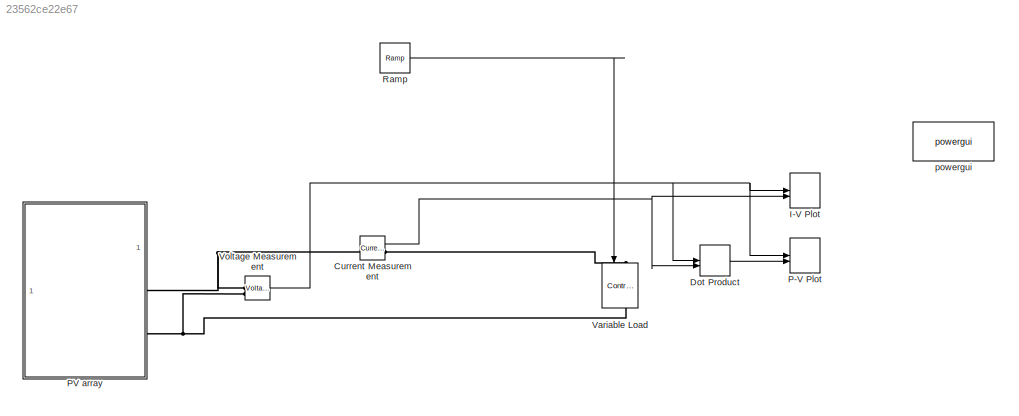
MODEL slx_23562ce22e67
KIND model
CONFIG AbsTol = auto
CONFIG EnableMultiTasking = off
CONFIG FixedStep = auto
CONFIG MaxStep = 3e-3
CONFIG MinStep = auto
CONFIG RelTol = 1e-3
CONFIG SampleTimeConstraint = Unconstrained
CONFIG SolverName = ode23tb
CONFIG StartTime = 0.0
CONFIG StopTime = 10
BLOCK [Reference] Current Measurement  REF=spsCurrentMeasurementLib/Current Measurement
  SourceBlock = spsCurrentMeasurementLib/Current Measurement
  SourceType = Current Measurement
  UserDataPersistent = on
BLOCK [DotProduct] Dot Product
  OutDataTypeStr = Inherit: Inherit via internal rule
BLOCK [Record] I-V Plot
  CompatibilityTag = XY
  FileSettingsInternal = {"entries":[{"content":{"excelSettings":{"content":{},"type":"Streamout.ExcelSettings"}},"type":"Streamout.FileSettingStorage","uuid":""}],"packageUris":["http:\/\/schema.mathworks.com\/mf0\/streamout_blocks\/R2020a"],"version":"1.0"}
  Layout = [1 1]
  SignalsInternal = {"entries":[{"content":{"signals":[{"content":{"blockPath":[],"dimensions":[1],"domain":"","lineColor":"#a2142f","plots":[1],"port":1,"sid":[""],"signalID":63,"signalName":"Voltage Measurement"},"type":"RecordBlkView.Signal","uuid":""},{"content":{"blockPath":[],"dimensions":[1],"domain":"","lineColor":"#139fff","plots":[1],"port":2,"sid":[""],"signalID":67,"signalName":"Current Measurement"},"typ...<+182ch>
  VisualizationBindings = {"xyplotplugin":{"info":[{"series":[{"bindingParametersList":[{"parameter":"X-Axis","signalID":63,"signalName":"Voltage Measurement"},{"parameter":"Y-Axis","signalID":67,"signalName":"Current Measurement"}],"seriesID":5876}],"subplotID":1}]}}
  st = -1
BLOCK [Record] P-V Plot
  CompatibilityTag = XY
  FileSettingsInternal = {"entries":[{"content":{"excelSettings":{"content":{},"type":"Streamout.ExcelSettings"}},"type":"Streamout.FileSettingStorage","uuid":""}],"packageUris":["http:\/\/schema.mathworks.com\/mf0\/streamout_blocks\/R2020a"],"version":"1.0"}
  Layout = [1 1]
  SignalsInternal = {"entries":[{"content":{"signals":[{"content":{"blockPath":[],"dimensions":[1],"domain":"","lineColor":"#a2142f","plots":[1],"port":1,"sid":[""],"signalID":71,"signalName":"Voltage Measurement"},"type":"RecordBlkView.Signal","uuid":""},{"content":{"blockPath":[],"dimensions":[1],"domain":"","lineColor":"#139fff","plots":[1],"port":2,"sid":[""],"signalID":75,"signalName":"Dot Product"},"type":"Reco...<+174ch>
  VisualizationBindings = {"xyplotplugin":{"info":[{"series":[{"bindingParametersList":[{"parameter":"X-Axis","signalID":71,"signalName":"Voltage Measurement"},{"parameter":"Y-Axis","signalID":75,"signalName":"Dot Product"}],"seriesID":34104}],"subplotID":1}]}}
  st = -1
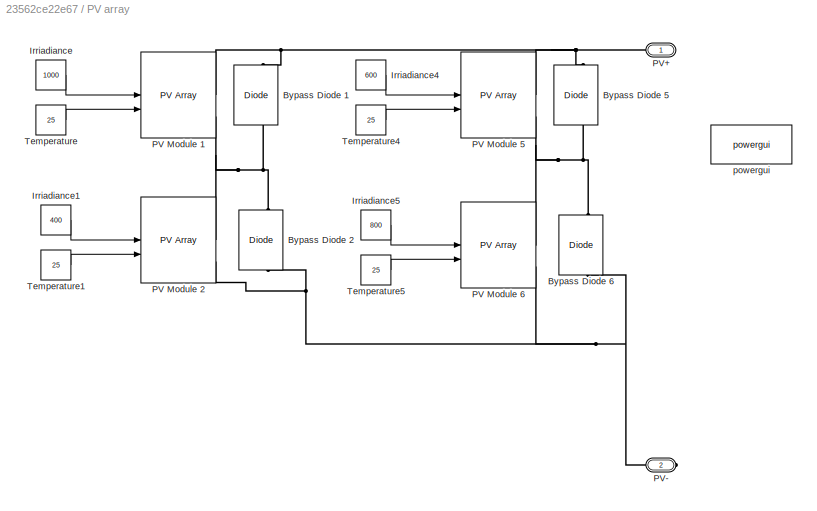
BLOCK [SubSystem] PV array
BLOCK [Reference] PV array/Bypass Diode 1  REF=spsDiodeLib/Diode
  NameLocation = right
  SourceBlock = spsDiodeLib/Diode
  SourceType = Diode
BLOCK [Reference] PV array/Bypass Diode 2  REF=spsDiodeLib/Diode
  NameLocation = right
  SourceBlock = spsDiodeLib/Diode
  SourceType = Diode
BLOCK [Reference] PV array/Bypass Diode 5  REF=spsDiodeLib/Diode
  NameLocation = right
  SourceBlock = spsDiodeLib/Diode
  SourceType = Diode
BLOCK [Reference] PV array/Bypass Diode 6  REF=spsDiodeLib/Diode
  NameLocation = right
  SourceBlock = spsDiodeLib/Diode
  SourceType = Diode
BLOCK [Constant] PV array/Irriadiance
  Value = 1000
BLOCK [Constant] PV array/Irriadiance1
  Value = 400
BLOCK [Constant] PV array/Irriadiance4
  Value = 600
BLOCK [Constant] PV array/Irriadiance5
  Value = 800
BLOCK [Reference] PV array/PV Module 1  REF=spsPVArrayLib/PV Array
  SourceBlock = spsPVArrayLib/PV Array
  SourceType = PV array
BLOCK [Reference] PV array/PV Module 2  REF=spsPVArrayLib/PV Array
  SourceBlock = spsPVArrayLib/PV Array
  SourceType = PV array
BLOCK [Reference] PV array/PV Module 5  REF=spsPVArrayLib/PV Array
  SourceBlock = spsPVArrayLib/PV Array
  SourceType = PV array
BLOCK [Reference] PV array/PV Module 6  REF=spsPVArrayLib/PV Array
  SourceBlock = spsPVArrayLib/PV Array
  SourceType = PV array
BLOCK [PMIOPort] PV array/PV+
  NameLocation = top
  Side = Right
BLOCK [PMIOPort] PV array/PV-
  NameLocation = top
  Port = 2
  Side = Right
BLOCK [Constant] PV array/Temperature
  Value = 25
BLOCK [Constant] PV array/Temperature1
  Value = 25
BLOCK [Constant] PV array/Temperature4
  Value = 25
BLOCK [Constant] PV array/Temperature5
  Value = 25
BLOCK [Reference] PV array/powergui  REF=spspowerguiLib/powergui
  Priority = 1
  SourceBlock = spspowerguiLib/powergui
  SourceType = PSB option menu block
BLOCK [Reference] Ramp  REF=simulink/Sources/Ramp
  SourceBlock = simulink/Sources/Ramp
  SourceType = Ramp
BLOCK [Reference] Variable Load  REF=spsControlledCurrentSourceLib/Controlled Current Source
  NameLocation = left
  SourceBlock = spsControlledCurrentSourceLib/Controlled Current Source
  SourceType = Controlled Current Source
BLOCK [Reference] Voltage Measurement  REF=spsVoltageMeasurementLib/Voltage Measurement
  SourceBlock = spsVoltageMeasurementLib/Voltage Measurement
  SourceType = Voltage Measurement
  UserDataPersistent = on
BLOCK [Reference] powergui  REF=spspowerguiLib/powergui
  Priority = 1
  SourceBlock = spspowerguiLib/powergui
  SourceType = PSB option menu block
NET Current Measurement:1 -> Dot Product:2, I-V Plot:2
LINE Dot Product:1 -> P-V Plot:2
LINE PV array/Irriadiance1:1 -> PV array/PV Module 2:1
LINE PV array/Irriadiance4:1 -> PV array/PV Module 5:1
LINE PV array/Irriadiance5:1 -> PV array/PV Module 6:1
LINE PV array/Irriadiance:1 -> PV array/PV Module 1:1
LINE PV array/Temperature1:1 -> PV array/PV Module 2:2
LINE PV array/Temperature4:1 -> PV array/PV Module 5:2
LINE PV array/Temperature5:1 -> PV array/PV Module 6:2
LINE PV array/Temperature:1 -> PV array/PV Module 1:2
LINE Ramp:1 -> Variable Load:1
NET Voltage Measurement:1 -> Dot Product:1, I-V Plot:1, P-V Plot:1
PNET net1: Current Measurement:LConn1 -- PV array:RConn1 -- Voltage Measurement:LConn1
PLINE Current Measurement:RConn1 -- Variable Load:LConn1
PNET net2: PV array/Bypass Diode 1:LConn1 -- PV array/Bypass Diode 2:RConn1 -- PV array/PV Module 1:RConn2 -- PV array/PV Module 2:RConn1
PNET net3: PV array/Bypass Diode 1:RConn1 -- PV array/Bypass Diode 5:RConn1 -- PV array/PV Module 1:RConn1 -- PV array/PV Module 5:RConn1 -- PV array/PV+:RConn1
PNET net4: PV array/Bypass Diode 2:LConn1 -- PV array/Bypass Diode 6:LConn1 -- PV array/PV Module 2:RConn2 -- PV array/PV Module 6:RConn2 -- PV array/PV-:RConn1
PNET net5: PV array/Bypass Diode 5:LConn1 -- PV array/Bypass Diode 6:RConn1 -- PV array/PV Module 5:RConn2 -- PV array/PV Module 6:RConn1
PNET net6: PV array:RConn2 -- Variable Load:RConn1 -- Voltage Measurement:LConn2
note: NET lines group one-source signal fan-out (src -> all destinations, sorted); 1:1 wires keep LINE; PNET lines group multi-terminal physical nets as a canonical sorted terminal list (undirected conserving connections); 2-terminal nets keep the pairwise PLINE form
